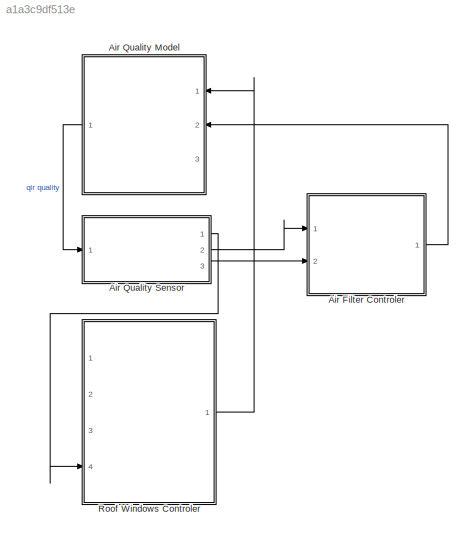
MODEL slx_a1a3c9df513e
KIND model
CONFIG AbsTol = auto
CONFIG EnableMultiTasking = off
CONFIG FixedStep = auto
CONFIG MaxStep = auto
CONFIG MinStep = auto
CONFIG RelTol = 1e-3
CONFIG SampleTimeConstraint = Unconstrained
CONFIG Solver = VariableStepAuto
CONFIG SolverName = VariableStepAuto
CONFIG StartTime = 0.0
CONFIG StopTime = 400
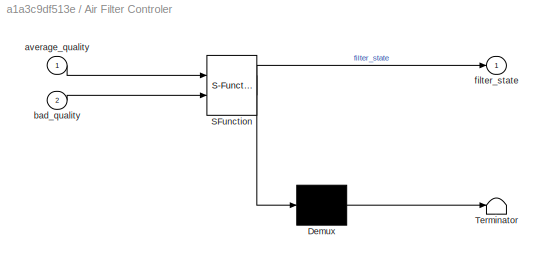
BLOCK [SubSystem] Air Filter Controler
  ErrorFcn = Stateflow.Translate.translate
  PermitHierarchicalResolution = ExplicitOnly
  Ports = [2, 1]
  RequestExecContextInheritance = off
  SFBlockType = Chart
  TreatAsAtomicUnit = on
BLOCK [Demux] Air Filter Controler/ Demux 
  Outputs = 1
  Ports = [1, 1]
BLOCK [S-Function] Air Filter Controler/ SFunction 
  EnableBusSupport = on
  FunctionName = sf_sfun
  PortCounts = [2 2]
  Ports = [2, 2]
  SFcnIsStateOwnerBlock = off
  SFunctionDeploymentMode = off
  Tag = Stateflow S-Function air_quality 12
BLOCK [Terminator] Air Filter Controler/ Terminator 
BLOCK [Inport] Air Filter Controler/average_quality
  IconDisplay = Port number
BLOCK [Inport] Air Filter Controler/bad_quality
  IconDisplay = Port number
  Port = 2
BLOCK [Outport] Air Filter Controler/filter_state
  IconDisplay = Port number
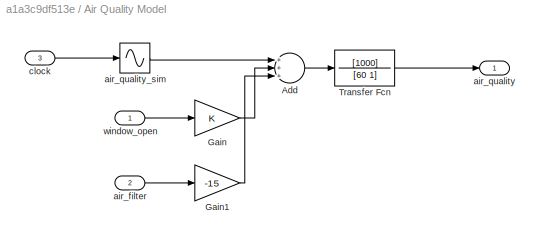
BLOCK [SubSystem] Air Quality Model
  Ports = [3, 1]
  RequestExecContextInheritance = off
BLOCK [Sum] Air Quality Model/Add
  InputSameDT = off
  Inputs = +++
  OutDataTypeStr = Inherit: Inherit via internal rule
  Ports = [3, 1]
  SaturateOnIntegerOverflow = off
BLOCK [Gain] Air Quality Model/Gain
  OutDataTypeStr = Inherit: Inherit via internal rule
  ParamDataTypeStr = Inherit: Inherit via internal rule
  SaturateOnIntegerOverflow = off
BLOCK [Gain] Air Quality Model/Gain1
  Gain = -15
  OutDataTypeStr = Inherit: Inherit via internal rule
  ParamDataTypeStr = Inherit: Inherit via internal rule
  SaturateOnIntegerOverflow = off
BLOCK [TransferFcn] Air Quality Model/Transfer Fcn
  Denominator = [60 1]
  Numerator = [1000]
BLOCK [Inport] Air Quality Model/air_filter
  IconDisplay = Port number
  Port = 2
BLOCK [Outport] Air Quality Model/air_quality
  IconDisplay = Port number
BLOCK [Sin] Air Quality Model/air_quality_sim
  Amplitude = 0.4
  Bias = 0.6
  Frequency = 2*pi/stepsInDay
  Phase = -pi/2
  Ports = [1, 1]
  SampleTime = 0
  TimeSource = Use external signal
BLOCK [Inport] Air Quality Model/clock
  IconDisplay = Port number
  Port = 3
BLOCK [Inport] Air Quality Model/window_open
  IconDisplay = Port number
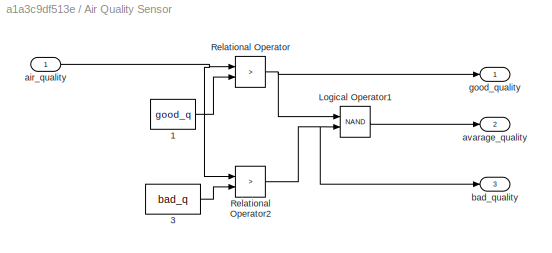
BLOCK [SubSystem] Air Quality Sensor
  Ports = [1, 3]
  RequestExecContextInheritance = off
BLOCK [Constant] Air Quality Sensor/1
  Value = good_q
BLOCK [Constant] Air Quality Sensor/3
  Value = bad_q
BLOCK [Logic] Air Quality Sensor/Logical Operator1
  AllPortsSameDT = off
  Operator = NAND
  OutDataTypeStr = boolean
  Ports = [2, 1]
BLOCK [RelationalOperator] Air Quality Sensor/Relational Operator
  InputSameDT = off
  Operator = >
  OutDataTypeStr = boolean
  Ports = [2, 1]
  RndMeth = Simplest
BLOCK [RelationalOperator] Air Quality Sensor/Relational Operator2
  InputSameDT = off
  Operator = >
  OutDataTypeStr = boolean
  Ports = [2, 1]
  RndMeth = Simplest
BLOCK [Inport] Air Quality Sensor/air_quality
  IconDisplay = Port number
BLOCK [Outport] Air Quality Sensor/avarage_quality
  IconDisplay = Port number
  Port = 2
BLOCK [Outport] Air Quality Sensor/bad_quality
  IconDisplay = Port number
  Port = 3
BLOCK [Outport] Air Quality Sensor/good_quality
  IconDisplay = Port number
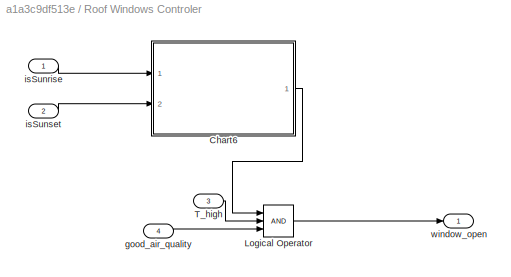
BLOCK [SubSystem] Roof Windows Controler
  Ports = [4, 1]
  RequestExecContextInheritance = off
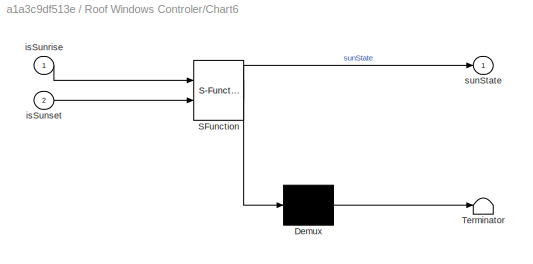
BLOCK [SubSystem] Roof Windows Controler/Chart6
  ErrorFcn = Stateflow.Translate.translate
  PermitHierarchicalResolution = ExplicitOnly
  Ports = [2, 1]
  RequestExecContextInheritance = off
  SFBlockType = Chart
  TreatAsAtomicUnit = on
BLOCK [Demux] Roof Windows Controler/Chart6/ Demux 
  Outputs = 1
  Ports = [1, 1]
BLOCK [S-Function] Roof Windows Controler/Chart6/ SFunction 
  EnableBusSupport = on
  FunctionName = sf_sfun
  PortCounts = [2 2]
  Ports = [2, 2]
  SFcnIsStateOwnerBlock = off
  SFunctionDeploymentMode = off
  Tag = Stateflow S-Function air_quality 13
BLOCK [Terminator] Roof Windows Controler/Chart6/ Terminator 
BLOCK [Inport] Roof Windows Controler/Chart6/isSunrise
  IconDisplay = Port number
BLOCK [Inport] Roof Windows Controler/Chart6/isSunset
  IconDisplay = Port number
  Port = 2
BLOCK [Outport] Roof Windows Controler/Chart6/sunState
  IconDisplay = Port number
BLOCK [Logic] Roof Windows Controler/Logical Operator
  AllPortsSameDT = off
  Inputs = 3
  OutDataTypeStr = boolean
  Ports = [3, 1]
BLOCK [Inport] Roof Windows Controler/T_high
  IconDisplay = Port number
  Port = 3
BLOCK [Inport] Roof Windows Controler/good_air_quality
  IconDisplay = Port number
  Port = 4
BLOCK [Inport] Roof Windows Controler/isSunrise
  IconDisplay = Port number
BLOCK [Inport] Roof Windows Controler/isSunset
  IconDisplay = Port number
  Port = 2
BLOCK [Outport] Roof Windows Controler/window_open
  IconDisplay = Port number
LINE Air Filter Controler:1 -> Air Quality Model:2
LINE Air Quality Model/Add:1 -> Air Quality Model/Transfer Fcn:1
LINE Air Quality Model/Gain1:1 -> Air Quality Model/Add:3
LINE Air Quality Model/Gain:1 -> Air Quality Model/Add:2
LINE Air Quality Model/Transfer Fcn:1 -> Air Quality Model/air_quality:1
LINE Air Quality Model/air_filter:1 -> Air Quality Model/Gain1:1
LINE Air Quality Model/air_quality_sim:1 -> Air Quality Model/Add:1
LINE Air Quality Model/clock:1 -> Air Quality Model/air_quality_sim:1
LINE Air Quality Model/window_open:1 -> Air Quality Model/Gain:1
LINE Air Quality Model:1 -> Air Quality Sensor:1
LINE Air Quality Sensor/1:1 -> Air Quality Sensor/Relational Operator:2
LINE Air Quality Sensor/3:1 -> Air Quality Sensor/Relational Operator2:2
LINE Air Quality Sensor/Logical Operator1:1 -> Air Quality Sensor/avarage_quality:1
NET Air Quality Sensor/Relational Operator2:1 -> Air Quality Sensor/Logical Operator1:2, Air Quality Sensor/bad_quality:1
NET Air Quality Sensor/Relational Operator:1 -> Air Quality Sensor/Logical Operator1:1, Air Quality Sensor/good_quality:1
NET Air Quality Sensor/air_quality:1 -> Air Quality Sensor/Relational Operator2:1, Air Quality Sensor/Relational Operator:1
LINE Air Quality Sensor:1 -> Roof Windows Controler:4
LINE Air Quality Sensor:2 -> Air Filter Controler:1
LINE Air Quality Sensor:3 -> Air Filter Controler:2
LINE Roof Windows Controler/Chart6:1 -> Roof Windows Controler/Logical Operator:1
LINE Roof Windows Controler/Logical Operator:1 -> Roof Windows Controler/window_open:1
LINE Roof Windows Controler/T_high:1 -> Roof Windows Controler/Logical Operator:2
LINE Roof Windows Controler/good_air_quality:1 -> Roof Windows Controler/Logical Operator:3
LINE Roof Windows Controler/isSunrise:1 -> Roof Windows Controler/Chart6:1
LINE Roof Windows Controler/isSunset:1 -> Roof Windows Controler/Chart6:2
LINE Roof Windows Controler:1 -> Air Quality Model:1
note: NET lines group one-source signal fan-out (src -> all destinations, sorted); 1:1 wires keep LINE
CHART Air Filter Controler states=2 transitions=3
  STATE_LABEL 'average\nfilter_state=1;'
  STATE_LABEL 'good\nfilter_state=0;'
CHART Roof Windows Controler/Chart6 states=2 transitions=3
  STATE_LABEL 'sun_up\nsunState=false;\n'
  STATE_LABEL 'sun_down\nsunState=true;'
